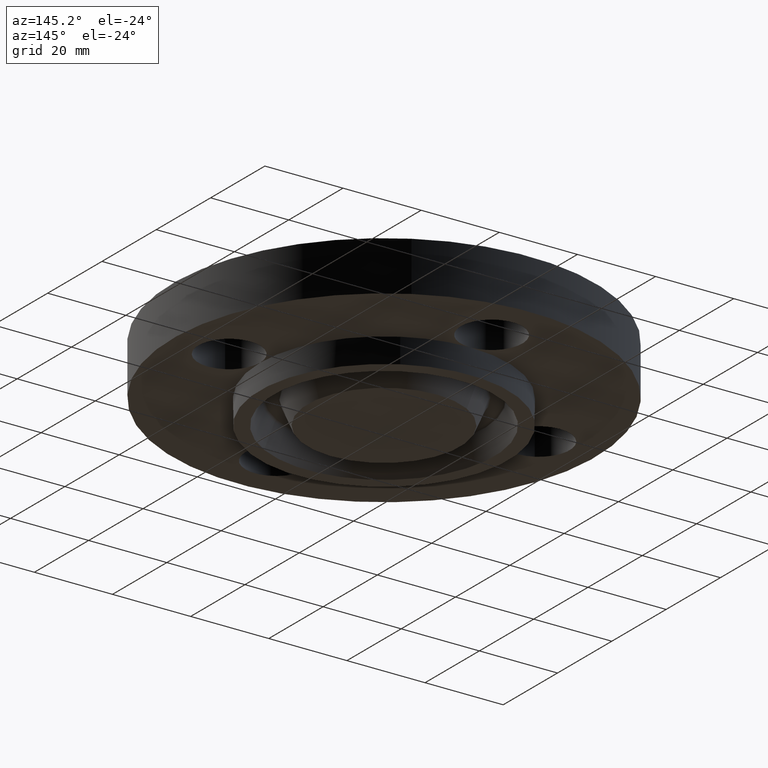
[diagram: clean part render]
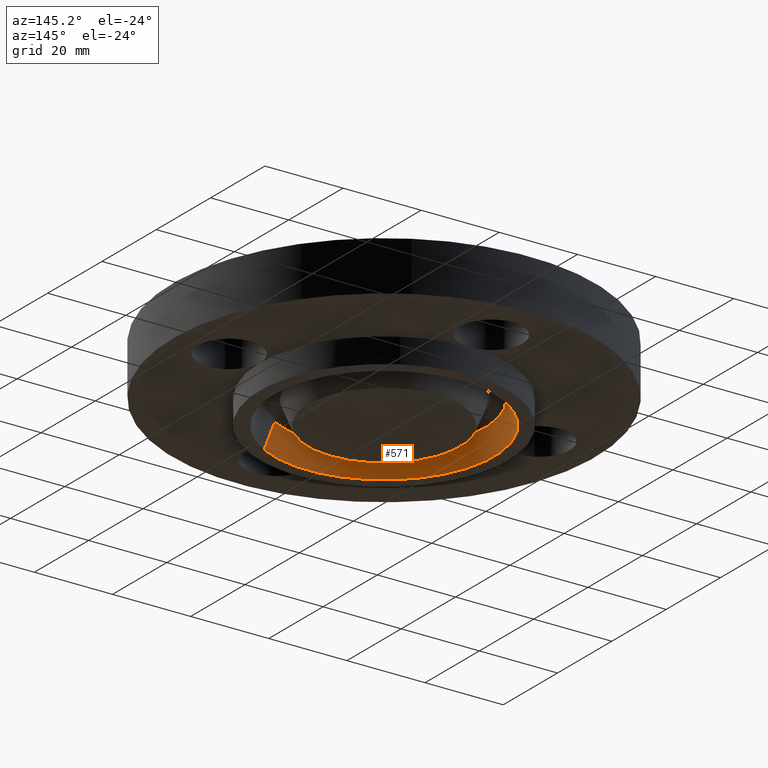
[diagram: same view with one face highlighted and labeled with its STEP entity id]
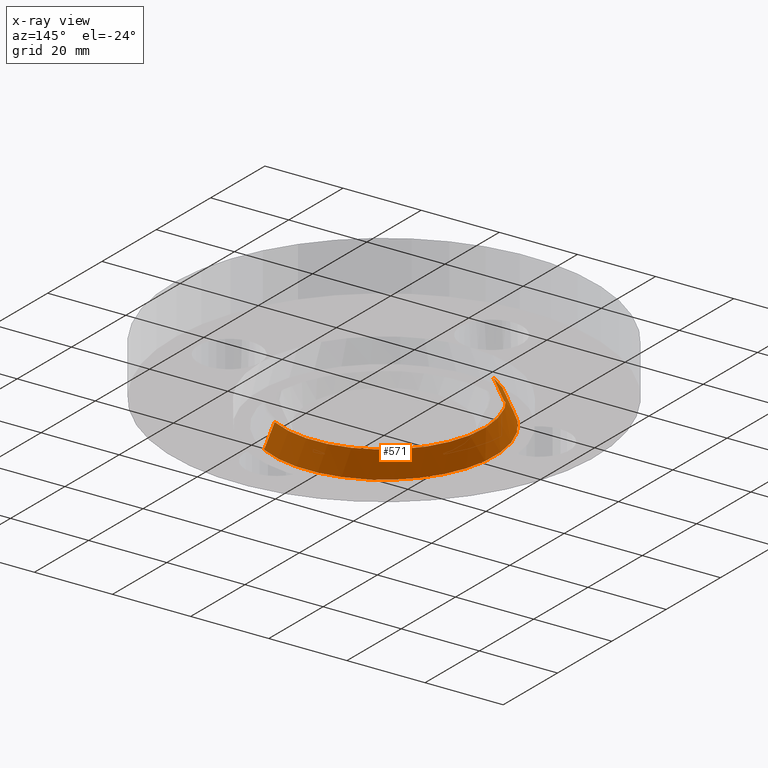
[diagram: x-ray of the same camera — body ghosted, the highlighted face saturated]
A machine part, auxiliary view. The second image highlights one B-rep face of the part: STEP entity #571.
The next image is the same camera in x-ray: the body ghosted, the highlighted face saturated — about 0% of this face is hidden behind the body in this view.
In plain terms, the highlighted conical surface has half-angle 23 deg.
Its self-contained STEP definition (entity closure, byte-faithful):
#79=AXIS2_PLACEMENT_3D('Circle Axis2P3D',#77,#78,$) ;
#517=AXIS2_PLACEMENT_3D('Circle Axis2P3D',#515,#516,$) ;
#553=AXIS2_PLACEMENT_3D('Cone Axis2P3D',#550,#551,#552) ;
#77=CARTESIAN_POINT('Axis2P3D Location',(-6.99353086378E-017,0.,-0.250000000001)) ;
#81=CARTESIAN_POINT('Vertex',(0.531862706891,-0.973568154601,-0.250000000001)) ;
#83=CARTESIAN_POINT('Vertex',(-0.531862706891,0.973568154601,-0.250000000001)) ;
#515=CARTESIAN_POINT('Axis2P3D Location',(0.,0.,-0.0190396522348)) ;
#519=CARTESIAN_POINT('Vertex',(-0.484861336716,0.887532723592,-0.0190396522348)) ;
#521=CARTESIAN_POINT('Vertex',(0.484861336716,-0.887532723592,-0.0190396522348)) ;
#550=CARTESIAN_POINT('Axis2P3D Location',(0.,0.,-0.0190396522348)) ;
#555=CARTESIAN_POINT('Line Origine',(-0.508362021804,0.930550439096,-0.134519826118)) ;
#560=CARTESIAN_POINT('Line Origine',(0.508362021804,-0.930550439096,-0.134519826118)) ;
#78=DIRECTION('Axis2P3D Direction',(0.,0.,-0.0393700787402)) ;
#516=DIRECTION('Axis2P3D Direction',(0.,0.,0.0393700787402)) ;
#551=DIRECTION('Axis2P3D Direction',(-0.,-0.,-0.0393700787402)) ;
#552=DIRECTION('Axis2P3D XDirection',(-0.0188750212049,0.0345504945626,0.)) ;
#556=DIRECTION('Vector Direction',(-0.00737505833565,0.0134999537303,-0.0362403485611)) ;
#561=DIRECTION('Vector Direction',(0.00737505833565,-0.0134999537303,-0.0362403485611)) ;
#557=VECTOR('Line Direction',#556,0.0393700787402) ;
#562=VECTOR('Line Direction',#561,0.0393700787402) ;
#566=ORIENTED_EDGE('',*,*,#85,.T.) ;
#567=ORIENTED_EDGE('',*,*,#559,.T.) ;
#568=ORIENTED_EDGE('',*,*,#523,.T.) ;
#569=ORIENTED_EDGE('',*,*,#564,.F.) ;
#571=ADVANCED_FACE('PartBody',(#570),#554,.F.) ;
#80=CIRCLE('generated circle',#79,1.109375) ;
#518=CIRCLE('generated circle',#517,1.01133814883) ;
#554=CONICAL_SURFACE('Cone',#553,1.01133814883,0.401425727959) ;
#85=EDGE_CURVE('',#82,#84,#80,.T.) ;
#523=EDGE_CURVE('',#520,#522,#518,.T.) ;
#559=EDGE_CURVE('',#84,#520,#558,.F.) ;
#564=EDGE_CURVE('',#82,#522,#563,.F.) ;
#565=EDGE_LOOP('',(#566,#567,#568,#569)) ;
#570=FACE_OUTER_BOUND('',#565,.T.) ;
#558=LINE('Line',#555,#557) ;
#563=LINE('Line',#560,#562) ;
#82=VERTEX_POINT('',#81) ;
#84=VERTEX_POINT('',#83) ;
#520=VERTEX_POINT('',#519) ;
#522=VERTEX_POINT('',#521) ;